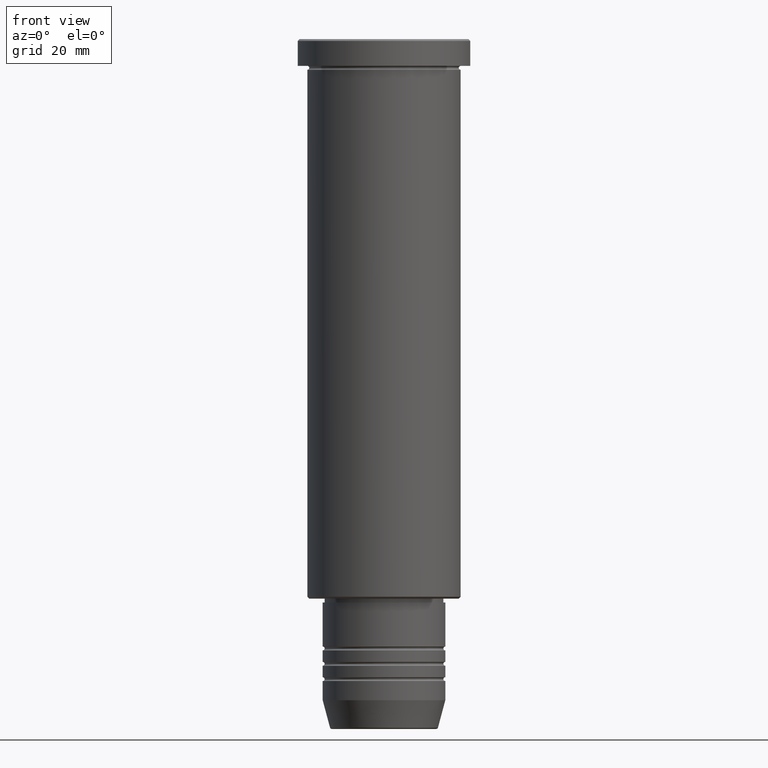
[diagram: clean part render]
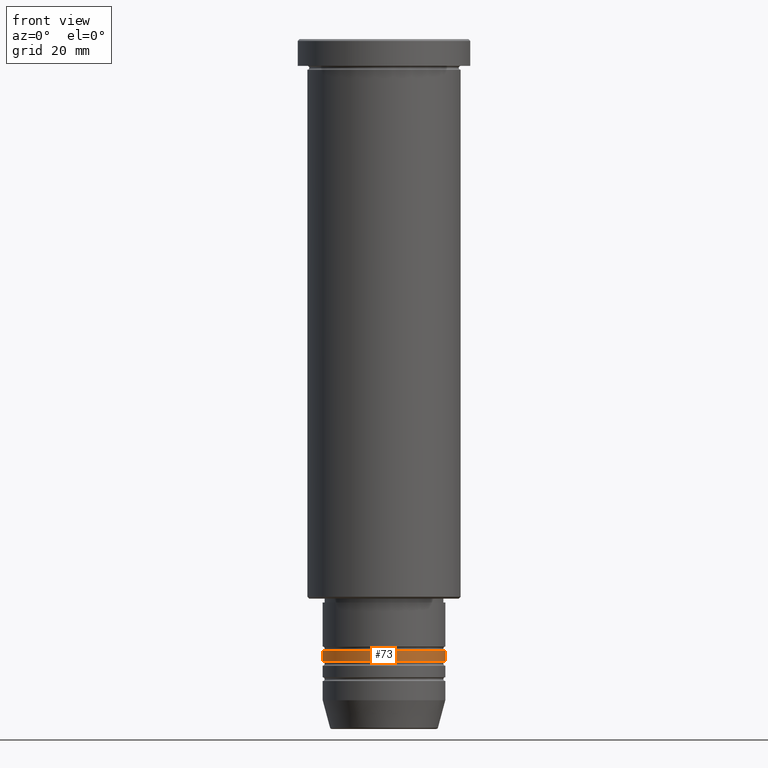
[diagram: same view with one face highlighted and labeled with its STEP entity id]
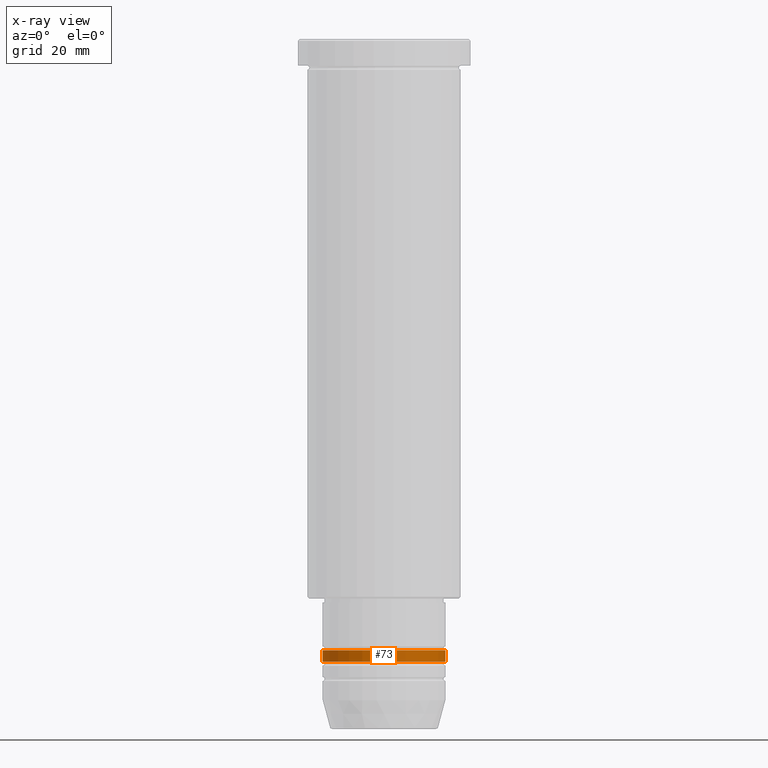
[diagram: x-ray of the same camera — body ghosted, the highlighted face saturated]
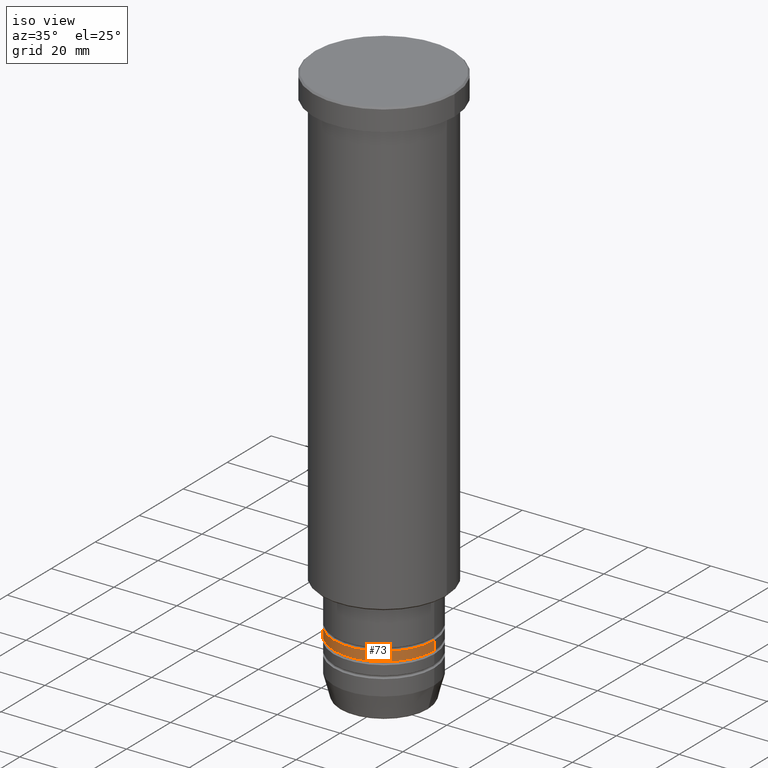
[diagram: same view with one face highlighted and labeled with its STEP entity id]
A machine part, front view. The second image highlights one B-rep face of the part: STEP entity #73.
The next image is the same camera in x-ray: the body ghosted, the highlighted face saturated — about 0% of this face is hidden behind the body in this view.
A second angle (iso view) of the same face is appended — the face is thin or edge-on in the first view.
In plain terms, the highlighted cylindrical surface (partial cylindrical patch) has radius 16 mm, axis along (-0, -0, 1).
Its self-contained STEP definition (entity closure, byte-faithful):
#7 = DIRECTION ( 'NONE',  ( -0.000000000000000000, -0.000000000000000000, 1.000000000000000000 ) ) ;
#17 = AXIS2_PLACEMENT_3D ( 'NONE', #79, #814, #1179 ) ;
#50 = CIRCLE ( 'NONE', #650, 16.00000000000000355 ) ;
#73 = ADVANCED_FACE ( 'NONE', ( #808 ), #252, .T. ) ;
#79 = CARTESIAN_POINT ( 'NONE',  ( 0.000000000000000000, 0.000000000000000000, -159.5000000000000000 ) ) ;
#86 = CARTESIAN_POINT ( 'NONE',  ( 16.00000000000000000, 0.000000000000000000, -159.5000000000000000 ) ) ;
#120 = CARTESIAN_POINT ( 'NONE',  ( -16.00000000000000355, 1.959434878635765526E-15, -162.5000000000000000 ) ) ;
#127 = VERTEX_POINT ( 'NONE', #234 ) ;
#130 = DIRECTION ( 'NONE',  ( -0.000000000000000000, -0.000000000000000000, 1.000000000000000000 ) ) ;
#179 = EDGE_CURVE ( 'NONE', #430, #648, #570, .T. ) ;
#234 = CARTESIAN_POINT ( 'NONE',  ( -16.00000000000000000, 1.959434878635765131E-15, -159.5000000000000000 ) ) ;
#252 = CYLINDRICAL_SURFACE ( 'NONE', #363, 16.00000000000000000 ) ;
#316 = ORIENTED_EDGE ( 'NONE', *, *, #179, .T. ) ;
#363 = AXIS2_PLACEMENT_3D ( 'NONE', #1084, #543, #447 ) ;
#404 = VECTOR ( 'NONE', #507, 1000.000000000000000 ) ;
#430 = VERTEX_POINT ( 'NONE', #679 ) ;
#447 = DIRECTION ( 'NONE',  ( 1.000000000000000000, 0.000000000000000000, 0.000000000000000000 ) ) ;
#459 = CARTESIAN_POINT ( 'NONE',  ( 16.00000000000000000, 0.000000000000000000, 0.000000000000000000 ) ) ;
#507 = DIRECTION ( 'NONE',  ( -0.000000000000000000, -0.000000000000000000, 1.000000000000000000 ) ) ;
#543 = DIRECTION ( 'NONE',  ( -0.000000000000000000, -0.000000000000000000, 1.000000000000000000 ) ) ;
#556 = CIRCLE ( 'NONE', #17, 16.00000000000000000 ) ;
#570 = LINE ( 'NONE', #459, #608 ) ;
#608 = VECTOR ( 'NONE', #7, 1000.000000000000000 ) ;
#645 = LINE ( 'NONE', #1046, #404 ) ;
#648 = VERTEX_POINT ( 'NONE', #86 ) ;
#650 = AXIS2_PLACEMENT_3D ( 'NONE', #1051, #130, #952 ) ;
#651 = EDGE_CURVE ( 'NONE', #127, #648, #556, .T. ) ;
#679 = CARTESIAN_POINT ( 'NONE',  ( 16.00000000000000355, 0.000000000000000000, -162.5000000000000000 ) ) ;
#759 = ORIENTED_EDGE ( 'NONE', *, *, #843, .T. ) ;
#807 = EDGE_LOOP ( 'NONE', ( #1081, #759, #316, #823 ) ) ;
#808 = FACE_OUTER_BOUND ( 'NONE', #807, .T. ) ;
#814 = DIRECTION ( 'NONE',  ( -0.000000000000000000, -0.000000000000000000, 1.000000000000000000 ) ) ;
#823 = ORIENTED_EDGE ( 'NONE', *, *, #651, .F. ) ;
#843 = EDGE_CURVE ( 'NONE', #917, #430, #50, .T. ) ;
#917 = VERTEX_POINT ( 'NONE', #120 ) ;
#952 = DIRECTION ( 'NONE',  ( 1.000000000000000000, 0.000000000000000000, 0.000000000000000000 ) ) ;
#1046 = CARTESIAN_POINT ( 'NONE',  ( -16.00000000000000000, 1.959434878635765131E-15, 0.000000000000000000 ) ) ;
#1051 = CARTESIAN_POINT ( 'NONE',  ( 0.000000000000000000, 0.000000000000000000, -162.5000000000000000 ) ) ;
#1081 = ORIENTED_EDGE ( 'NONE', *, *, #1112, .F. ) ;
#1084 = CARTESIAN_POINT ( 'NONE',  ( 0.000000000000000000, 0.000000000000000000, 0.000000000000000000 ) ) ;
#1112 = EDGE_CURVE ( 'NONE', #917, #127, #645, .T. ) ;
#1179 = DIRECTION ( 'NONE',  ( 1.000000000000000000, 0.000000000000000000, 0.000000000000000000 ) ) ;